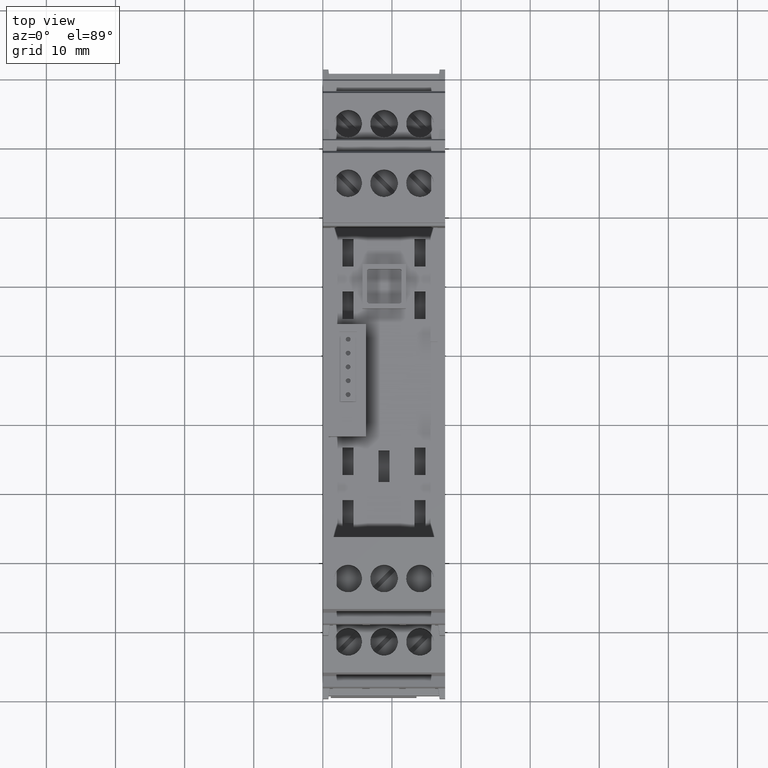
[diagram: clean part render]
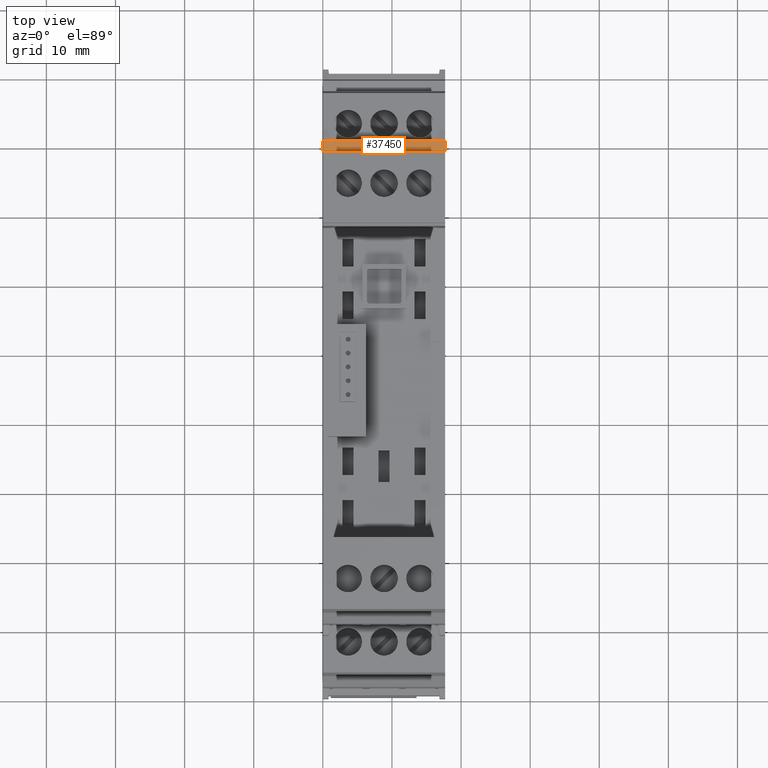
[diagram: same view with one face highlighted and labeled with its STEP entity id]
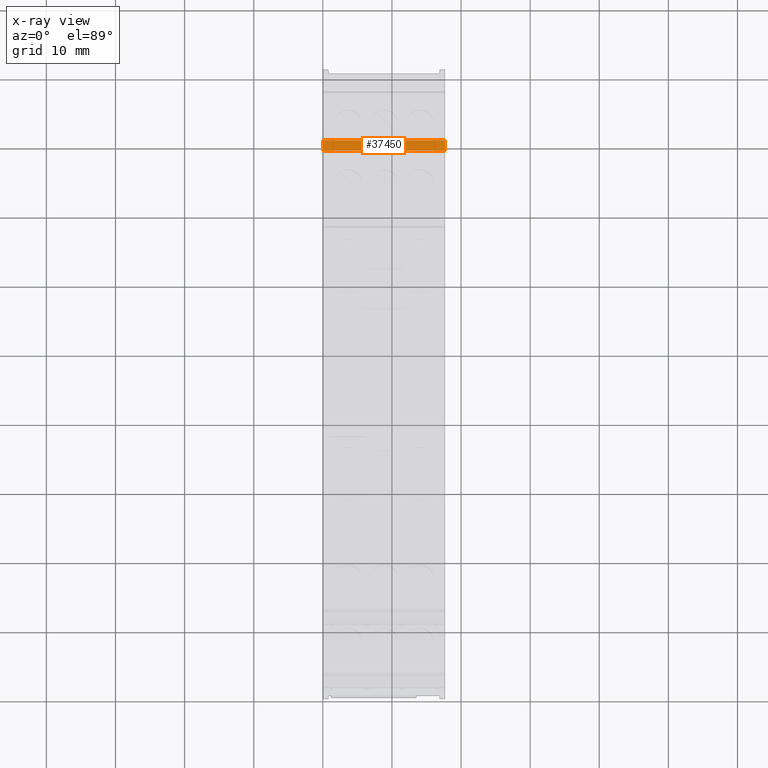
[diagram: x-ray of the same camera — body ghosted, the highlighted face saturated]
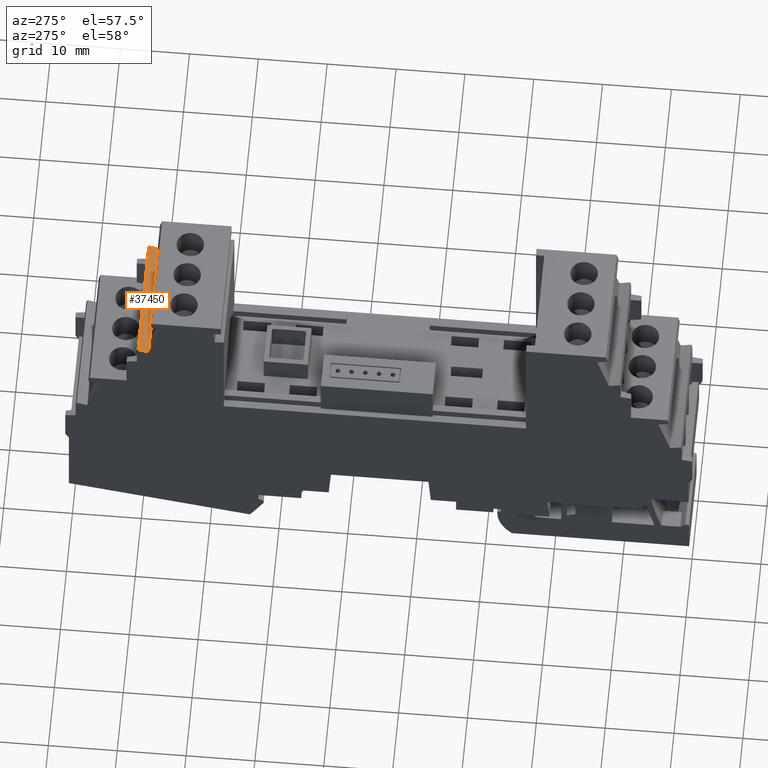
[diagram: same view with one face highlighted and labeled with its STEP entity id]
A machine part, top view. The second image highlights one B-rep face of the part: STEP entity #37450.
The next image is the same camera in x-ray: the body ghosted, the highlighted face saturated — about 0% of this face is hidden behind the body in this view.
A second angle (auxiliary view) of the same face is appended — the face is thin or edge-on in the first view.
In plain terms, the highlighted planar face has unit normal (0, 0.2639, -0.9646).
Its self-contained STEP definition (entity closure, byte-faithful):
#920=CARTESIAN_POINT('',(151.572249673886,64.2789071291908,
-0.938341447250252));
#930=VERTEX_POINT('',#920);
#960=CARTESIAN_POINT('',(85.4518755928881,46.1904196636059,
-0.938341446446538));
#970=DIRECTION('',(-0.964557418457773,-0.263873049965463,
1.19815861507196E-11));
#980=VECTOR('',#970,1.);
#990=LINE('',#960,#980);
#1000=CARTESIAN_POINT('',(153.115541543419,64.7011040091355,
-0.938341447268609));
#1010=VERTEX_POINT('',#1000);
#1020=EDGE_CURVE('',#1010,#930,#990,.T.);
#13840=CARTESIAN_POINT('',(153.115541543414,64.7011040083574,
-18.6383414437244));
#13850=VERTEX_POINT('',#13840);
#13880=CARTESIAN_POINT('',(85.4518755936615,46.1904196630406,
-18.6383414429017));
#13890=DIRECTION('',(0.964557418457773,0.263873049965463,
-1.1727234055778E-11));
#13900=VECTOR('',#13890,1.);
#13910=LINE('',#13880,#13900);
#13920=CARTESIAN_POINT('',(151.572249673882,64.2789071284127,
-18.6383414437056));
#13930=VERTEX_POINT('',#13920);
#13940=EDGE_CURVE('',#13930,#13850,#13910,.T.);
#37120=CARTESIAN_POINT('',(153.115541543419,64.7011040091355,
-0.938341441712277));
#37130=DIRECTION('',(-2.63640962876098E-13,-4.39608926050624E-11,-1.));
#37140=VECTOR('',#37130,1.);
#37150=LINE('',#37120,#37140);
#37160=EDGE_CURVE('',#1010,#13850,#37150,.T.);
#37290=CARTESIAN_POINT('',(152.604326111632,64.5612512918758,
-18.6383414442589));
#37300=DIRECTION('',(0.263873049965463,-0.964557418457773,
4.23332373392685E-11));
#37310=DIRECTION('',(0.964557418457773,0.263873049965463,
-1.18543916574535E-11));
#37320=AXIS2_PLACEMENT_3D('',#37290,#37300,#37310);
#37330=PLANE('',#37320);
#37340=ORIENTED_EDGE('',*,*,#13940,.F.);
#37350=ORIENTED_EDGE('',*,*,#37160,.T.);
#37360=ORIENTED_EDGE('',*,*,#1020,.F.);
#37370=CARTESIAN_POINT('',(151.572249673886,64.2789071291908,
-0.938341441761326));
#37380=DIRECTION('',(2.63640962876091E-13,4.39608926050624E-11,1.));
#37390=VECTOR('',#37380,1.);
#37400=LINE('',#37370,#37390);
#37410=EDGE_CURVE('',#13930,#930,#37400,.T.);
#37420=ORIENTED_EDGE('',*,*,#37410,.T.);
#37430=EDGE_LOOP('',(#37420,#37360,#37350,#37340));
#37440=FACE_OUTER_BOUND('',#37430,.T.);
#37450=ADVANCED_FACE('',(#37440),#37330,.F.);